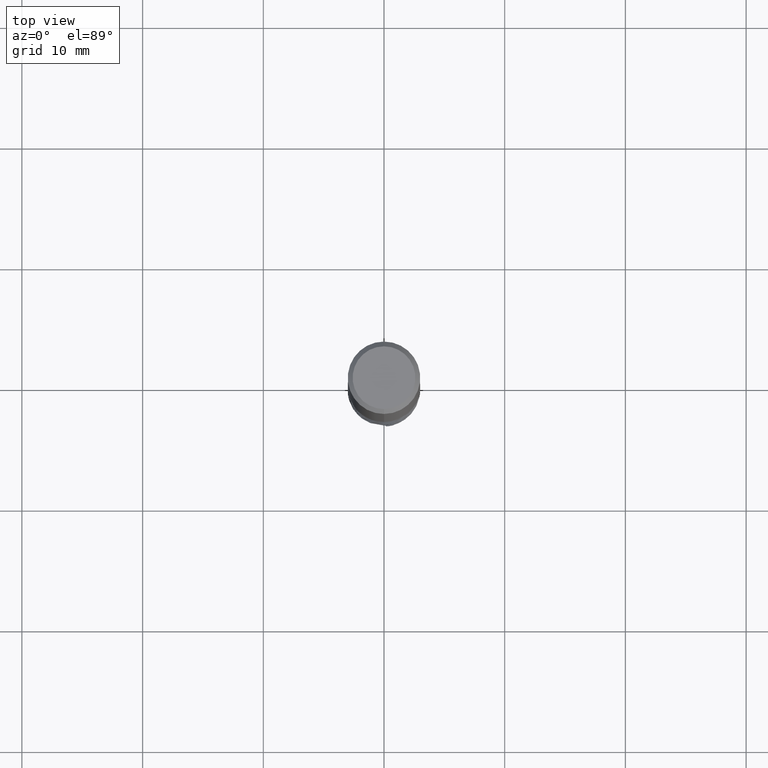
[diagram: clean part render]
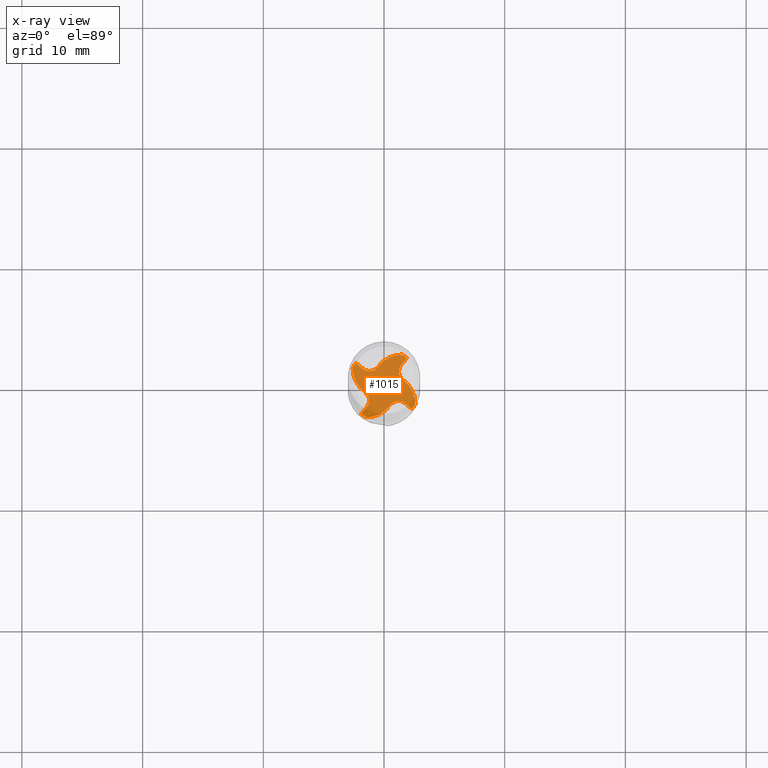
[diagram: x-ray — body ghosted, one internal face saturated and labeled with its STEP entity id]
A machine part, top view, then the same camera in x-ray: the body is ghosted and one INTERNAL B-rep face — a face not visible from any outside direction — is saturated and labeled: STEP entity #1015.
In plain terms, the highlighted planar face has unit normal (0, 0, -1).
Its self-contained STEP definition (entity closure, byte-faithful):
#559=EDGE_CURVE('',#1569,#897,#1618,.T.);
#569=EDGE_CURVE('',#705,#707,#1629,.T.);
#587=EDGE_CURVE('',#615,#1433,#1649,.T.);
#615=VERTEX_POINT('',#1679);
#645=EDGE_CURVE('',#897,#1131,#1711,.T.);
#705=VERTEX_POINT('',#1774);
#707=VERTEX_POINT('',#1776);
#713=VERTEX_POINT('',#1782);
#739=EDGE_CURVE('',#1271,#1545,#1809,.T.);
#857=VERTEX_POINT('',#1937);
#869=EDGE_CURVE('',#877,#1097,#1949,.T.);
#877=VERTEX_POINT('',#1958);
#887=EDGE_CURVE('',#1361,#705,#1969,.T.);
#897=VERTEX_POINT('',#1979);
#925=EDGE_CURVE('',#713,#953,#2009,.T.);
#953=VERTEX_POINT('',#2043);
#999=EDGE_CURVE('',#1545,#1051,#2095,.T.);
#1007=EDGE_CURVE('',#1483,#1271,#2104,.T.);
#1009=EDGE_CURVE('',#857,#1483,#2106,.T.);
#1013=EDGE_CURVE('',#1097,#1413,#2111,.T.);
#1015=ADVANCED_FACE('',(#2113),#2114,.T.);
#1051=VERTEX_POINT('',#2153);
#1097=VERTEX_POINT('',#2200);
#1123=EDGE_CURVE('',#1051,#1517,#2227,.T.);
#1131=VERTEX_POINT('',#2235);
#1235=EDGE_CURVE('',#1561,#615,#2350,.T.);
#1271=VERTEX_POINT('',#2389);
#1283=EDGE_CURVE('',#1413,#1569,#2401,.T.);
#1361=VERTEX_POINT('',#2492);
#1391=EDGE_CURVE('',#1131,#1561,#2523,.T.);
#1411=EDGE_CURVE('',#1433,#857,#2548,.T.);
#1413=VERTEX_POINT('',#2550);
#1433=VERTEX_POINT('',#2571);
#1441=EDGE_CURVE('',#1517,#713,#2580,.T.);
#1479=EDGE_CURVE('',#953,#1361,#2621,.T.);
#1483=VERTEX_POINT('',#2626);
#1517=VERTEX_POINT('',#2666);
#1545=VERTEX_POINT('',#2696);
#1561=VERTEX_POINT('',#2712);
#1569=VERTEX_POINT('',#2721);
#1571=EDGE_CURVE('',#707,#877,#2723,.T.);
#1618=CIRCLE('',#2770,2.3868);
#1629=CIRCLE('',#3101,2.3868);
#1649=CIRCLE('',#3514,0.862499999999999);
#1679=CARTESIAN_POINT('',(-1.74225447060971,1.43556804423964,-40.0000000000005));
#1711=CIRCLE('',#3871,0.4056);
#1774=CARTESIAN_POINT('',(0.528136233956872,-1.55274059910884,-40.0000000000005));
#1776=CARTESIAN_POINT('',(-1.4803419593798,-2.59662657413081,-40.0000000000005));
#1782=CARTESIAN_POINT('',(2.5872552533015,-1.51848946547672,-40.0));
#1809=LINE('',#4208,#4209);
#1937=CARTESIAN_POINT('',(1.48034195937981,2.5966265741308,-40.0000000000005));
#1949=CIRCLE('',#5145,2.99995);
#1958=CARTESIAN_POINT('',(-1.5184894654767,-2.58725525330151,-40.0));
#1969=CIRCLE('',#5539,0.862499999999999);
#1979=CARTESIAN_POINT('',(-2.59662657413081,1.4803419593798,-40.0000000000005));
#2009=CIRCLE('',#5674,2.99995);
#2043=CARTESIAN_POINT('',(2.31524974489691,-1.90769982472473,-40.0));
#2095=CIRCLE('',#6236,0.862499999999999);
#2104=CIRCLE('',#6248,2.99995);
#2106=CIRCLE('',#6251,0.4056);
#2111=LINE('',#6574,#6575);
#2113=FACE_OUTER_BOUND('',#6577,.T.);
#2114=PLANE('',#6578);
#2153=CARTESIAN_POINT('',(1.55274059910883,0.528136233956857,-40.0000000000005));
#2200=CARTESIAN_POINT('',(-1.90769982472472,-2.31524974489692,-40.0000000000005));
#2227=CIRCLE('',#7319,2.3868);
#2235=CARTESIAN_POINT('',(-2.58725525330128,1.51848946547711,-40.0000000000005));
#2350=LINE('',#8506,#8507);
#2389=CARTESIAN_POINT('',(1.90769982472473,2.31524974489692,-40.0));
#2401=CIRCLE('',#9140,0.862499999999999);
#2492=CARTESIAN_POINT('',(1.74225447060972,-1.43556804423966,-40.0000000000005));
#2523=CIRCLE('',#9778,2.99995);
#2548=CIRCLE('',#9819,2.3868);
#2550=CARTESIAN_POINT('',(-1.43556804423966,-1.74225447060972,-40.0000000000005));
#2571=CARTESIAN_POINT('',(-0.528136233956857,1.55274059910883,-40.0000000000005));
#2580=CIRCLE('',#10474,0.4056);
#2621=LINE('',#10874,#10875);
#2626=CARTESIAN_POINT('',(1.51848946547674,2.58725525330149,-40.0));
#2666=CARTESIAN_POINT('',(2.5966265741308,-1.48034195937981,-40.0000000000005));
#2696=CARTESIAN_POINT('',(1.43556804423964,1.74225447060971,-40.0000000000005));
#2712=CARTESIAN_POINT('',(-2.31524974489692,1.90769982472473,-40.0));
#2721=CARTESIAN_POINT('',(-1.55274059910884,-0.528136233956872,-40.0000000000005));
#2723=CIRCLE('',#11387,0.4056);
#2770=AXIS2_PLACEMENT_3D('',#11434,#11435,#11436);
#3101=AXIS2_PLACEMENT_3D('',#11448,#11449,#11450);
#3514=AXIS2_PLACEMENT_3D('',#11478,#11479,#11480);
#3871=AXIS2_PLACEMENT_3D('',#11526,#11527,#11528);
#4208=CARTESIAN_POINT('',(1.43556804423964,1.74225447060971,-40.0000000000005));
#4209=VECTOR('',#11593,0.999999999999999);
#5145=AXIS2_PLACEMENT_3D('',#11686,#11687,#11688);
#5539=AXIS2_PLACEMENT_3D('',#11713,#11714,#11715);
#5674=AXIS2_PLACEMENT_3D('',#11753,#11754,#11755);
#6236=AXIS2_PLACEMENT_3D('',#11887,#11888,#11889);
#6248=AXIS2_PLACEMENT_3D('',#11911,#11912,#11913);
#6251=AXIS2_PLACEMENT_3D('',#11914,#11915,#11916);
#6574=CARTESIAN_POINT('',(-1.43556804423966,-1.74225447060972,-40.0000000000005));
#6575=VECTOR('',#11926,0.999999999999999);
#6577=EDGE_LOOP('',(#11928,#11929,#11930,#11931,#11932,#11933,#11934,#11935,#11936,#11937,#11938,#11939,#11940,#11941,#11942,#11943,#11944,#11945,#11946,#11947));
#6578=AXIS2_PLACEMENT_3D('',#11948,#11949,#11950);
#7319=AXIS2_PLACEMENT_3D('',#12027,#12028,#12029);
#8506=CARTESIAN_POINT('',(-1.74225447060971,1.43556804423964,-40.0000000000005));
#8507=VECTOR('',#12150,0.999999999999999);
#9140=AXIS2_PLACEMENT_3D('',#12188,#12189,#12190);
#9778=AXIS2_PLACEMENT_3D('',#12365,#12366,#12367);
#9819=AXIS2_PLACEMENT_3D('',#12430,#12431,#12432);
#10474=AXIS2_PLACEMENT_3D('',#12453,#12454,#12455);
#10874=CARTESIAN_POINT('',(1.74225447060972,-1.43556804423966,-40.0000000000005));
#10875=VECTOR('',#12500,0.999999999999999);
#11387=AXIS2_PLACEMENT_3D('',#12624,#12625,#12626);
#11434=CARTESIAN_POINT('',(-0.210085164047442,1.4452087999133,-40.0000000000005));
#11435=DIRECTION('',(-9.99200722162641E-016,5.21804821573824E-015,-1.0));
#11436=DIRECTION('',(-0.562533699958692,-0.826774356406138,-3.75206437602363E-015));
#11448=CARTESIAN_POINT('',(-1.4452087999133,-0.210085164047442,-40.0000000000005));
#11449=DIRECTION('',(-5.21804821573824E-015,-9.99200722162641E-016,-1.0));
#11450=DIRECTION('',(0.826774356406138,-0.562533699958692,-3.75206437602363E-015));
#11478=CARTESIAN_POINT('',(-1.19378162980092,2.10121344012822,-40.0000000000005));
#11479=DIRECTION('',(-5.21804821573824E-015,-9.99200722162641E-016,1.0));
#11480=DIRECTION('',(0.771762777604877,-0.635910540173384,3.39169311368223E-015));
#11526=CARTESIAN_POINT('',(-2.98536755481879,1.59606494730239,-40.0000000000005));
#11527=DIRECTION('',(9.99200722162641E-016,-5.21804821573824E-015,1.0));
#11528=DIRECTION('',(0.208426380258503,0.978038058570493,4.89518995677581E-015));
#11593=DIRECTION('',(-0.635910540083905,-0.771762777678605,3.38618022510673E-015));
#11686=CARTESIAN_POINT('',(0.0,0.0,-40.0));
#11687=DIRECTION('',(0.0,0.0,-1.0));
#11688=DIRECTION('',(0.0,1.0,0.0));
#11713=CARTESIAN_POINT('',(1.19378162980094,-2.10121344012823,-40.0000000000005));
#11714=DIRECTION('',(5.21804821573824E-015,9.99200722162641E-016,1.0));
#11715=DIRECTION('',(-0.771762777604877,0.635910540173384,3.39169311368223E-015));
#11753=CARTESIAN_POINT('',(0.0,0.0,-40.0));
#11754=DIRECTION('',(0.0,0.0,-1.0));
#11755=DIRECTION('',(0.0,1.0,0.0));
#11887=CARTESIAN_POINT('',(2.10121344012822,1.19378162980092,-40.0000000000005));
#11888=DIRECTION('',(-9.99200722162641E-016,5.21804821573824E-015,1.0));
#11889=DIRECTION('',(-0.635910540173384,-0.771762777604877,3.39169311368223E-015));
#11911=CARTESIAN_POINT('',(0.0,0.0,-40.0));
#11912=DIRECTION('',(0.0,0.0,-1.0));
#11913=DIRECTION('',(0.0,1.0,0.0));
#11914=CARTESIAN_POINT('',(1.59606494730241,2.98536755481878,-40.0000000000005));
#11915=DIRECTION('',(-5.21804821573824E-015,-9.99200722162641E-016,1.0));
#11916=DIRECTION('',(0.978038058570493,-0.208426380258503,4.89518995677581E-015));
#11926=DIRECTION('',(0.635910540083905,0.771762777678605,3.38618022510673E-015));
#11928=ORIENTED_EDGE('',*,*,#1235,.T.);
#11929=ORIENTED_EDGE('',*,*,#587,.T.);
#11930=ORIENTED_EDGE('',*,*,#1411,.T.);
#11931=ORIENTED_EDGE('',*,*,#1009,.T.);
#11932=ORIENTED_EDGE('',*,*,#1007,.T.);
#11933=ORIENTED_EDGE('',*,*,#739,.T.);
#11934=ORIENTED_EDGE('',*,*,#999,.T.);
#11935=ORIENTED_EDGE('',*,*,#1123,.T.);
#11936=ORIENTED_EDGE('',*,*,#1441,.T.);
#11937=ORIENTED_EDGE('',*,*,#925,.T.);
#11938=ORIENTED_EDGE('',*,*,#1479,.T.);
#11939=ORIENTED_EDGE('',*,*,#887,.T.);
#11940=ORIENTED_EDGE('',*,*,#569,.T.);
#11941=ORIENTED_EDGE('',*,*,#1571,.T.);
#11942=ORIENTED_EDGE('',*,*,#869,.T.);
#11943=ORIENTED_EDGE('',*,*,#1013,.T.);
#11944=ORIENTED_EDGE('',*,*,#1283,.T.);
#11945=ORIENTED_EDGE('',*,*,#559,.T.);
#11946=ORIENTED_EDGE('',*,*,#645,.T.);
#11947=ORIENTED_EDGE('',*,*,#1391,.T.);
#11948=CARTESIAN_POINT('',(0.0,1.499975,-40.0));
#11949=DIRECTION('',(0.0,0.0,-1.0));
#11950=DIRECTION('',(0.0,1.0,0.0));
#12027=CARTESIAN_POINT('',(0.210085164047428,-1.44520879991332,-40.0000000000005));
#12028=DIRECTION('',(9.99200722162641E-016,-5.21804821573824E-015,-1.0));
#12029=DIRECTION('',(0.562533699958692,0.826774356406138,-3.75206437602363E-015));
#12150=DIRECTION('',(0.771762777678605,-0.635910540083905,3.38618022510673E-015));
#12188=CARTESIAN_POINT('',(-2.10121344012823,-1.19378162980094,-40.0000000000005));
#12189=DIRECTION('',(9.99200722162641E-016,-5.21804821573824E-015,1.0));
#12190=DIRECTION('',(0.635910540173384,0.771762777604877,3.39169311368223E-015));
#12365=CARTESIAN_POINT('',(0.0,0.0,-40.0));
#12366=DIRECTION('',(0.0,0.0,-1.0));
#12367=DIRECTION('',(0.0,1.0,0.0));
#12430=CARTESIAN_POINT('',(1.44520879991332,0.210085164047428,-40.0000000000005));
#12431=DIRECTION('',(5.21804821573824E-015,9.99200722162641E-016,-1.0));
#12432=DIRECTION('',(-0.826774356406138,0.562533699958692,-3.75206437602363E-015));
#12453=CARTESIAN_POINT('',(2.98536755481878,-1.59606494730241,-40.0000000000005));
#12454=DIRECTION('',(-9.99200722162641E-016,5.21804821573824E-015,1.0));
#12455=DIRECTION('',(-0.208426380258503,-0.978038058570493,4.89518995677581E-015));
#12500=DIRECTION('',(-0.771762777678605,0.635910540083905,3.38618022510673E-015));
#12624=CARTESIAN_POINT('',(-1.59606494730239,-2.98536755481879,-40.0000000000005));
#12625=DIRECTION('',(5.21804821573824E-015,9.99200722162641E-016,1.0));
#12626=DIRECTION('',(-0.978038058570493,0.208426380258503,4.89518995677581E-015));